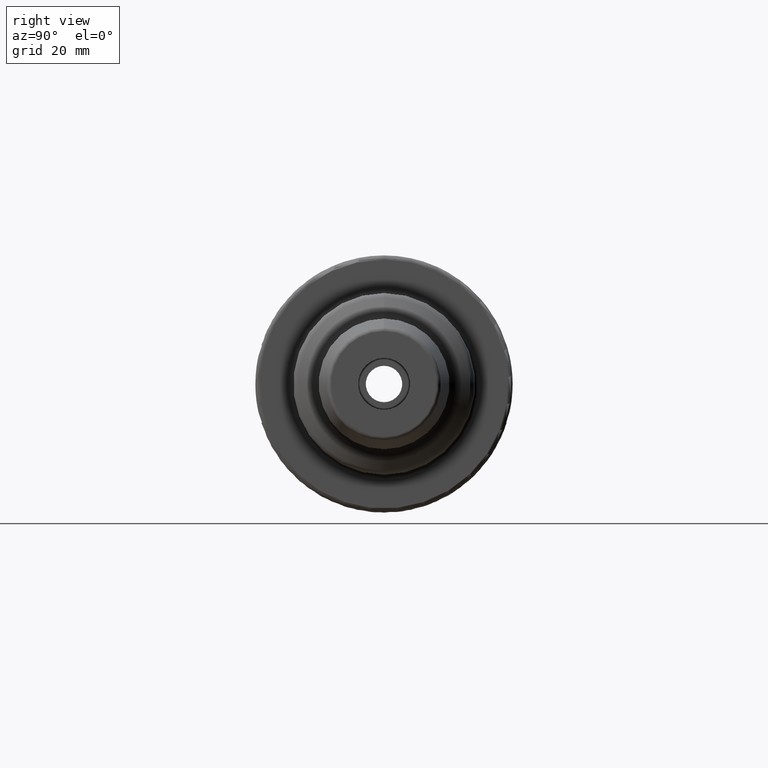
[diagram: clean part render]
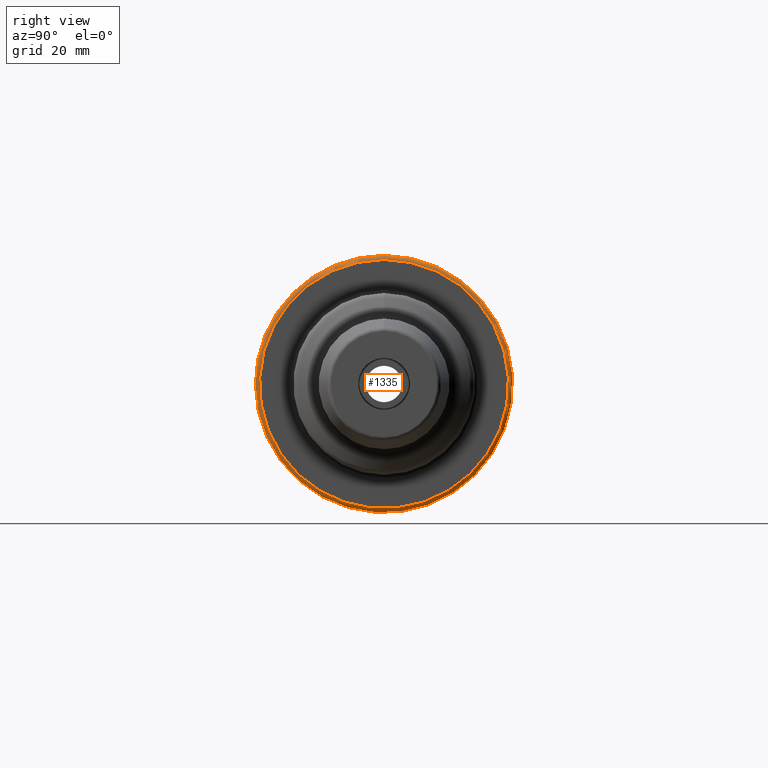
[diagram: same view with one face highlighted and labeled with its STEP entity id]
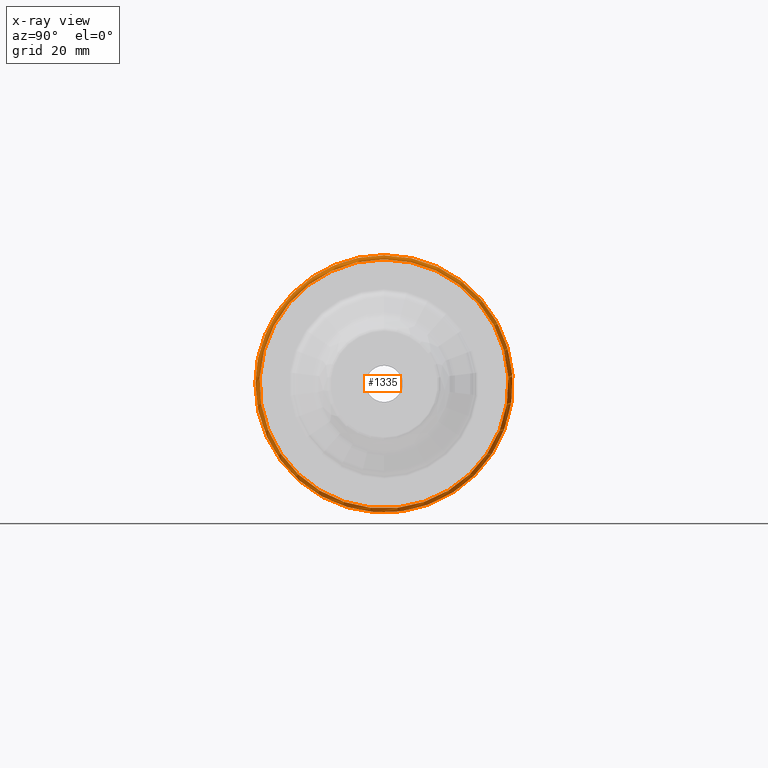
[diagram: x-ray of the same camera — body ghosted, the highlighted face saturated]
A machine part, right view. The second image highlights one B-rep face of the part: STEP entity #1335.
The next image is the same camera in x-ray: the body ghosted, the highlighted face saturated — about 0% of this face is hidden behind the body in this view.
In plain terms, the highlighted toroidal blend (fillet) surface has major radius 30.5 mm and minor (blend) radius 1 mm.
Its self-contained STEP definition (entity closure, byte-faithful):
#95=TOROIDAL_SURFACE('',#1518,30.5,1.00000000000001);
#187=FACE_OUTER_BOUND('',#274,.T.);
#274=EDGE_LOOP('',(#1190,#1191,#1192,#1193,#1194));
#470=CIRCLE('',#1439,30.5);
#478=CIRCLE('',#1455,31.5);
#481=CIRCLE('',#1458,31.5);
#507=CIRCLE('',#1519,1.00000000000001);
#555=VERTEX_POINT('',#2088);
#566=VERTEX_POINT('',#2202);
#567=VERTEX_POINT('',#2203);
#702=EDGE_CURVE('',#555,#555,#470,.T.);
#718=EDGE_CURVE('',#566,#567,#478,.T.);
#723=EDGE_CURVE('',#567,#566,#481,.T.);
#822=EDGE_CURVE('',#555,#567,#507,.T.);
#1190=ORIENTED_EDGE('',*,*,#702,.F.);
#1191=ORIENTED_EDGE('',*,*,#822,.T.);
#1192=ORIENTED_EDGE('',*,*,#723,.T.);
#1193=ORIENTED_EDGE('',*,*,#718,.T.);
#1194=ORIENTED_EDGE('',*,*,#822,.F.);
#1335=ADVANCED_FACE('',(#187),#95,.T.);
#1439=AXIS2_PLACEMENT_3D('',#2089,#1701,#1702);
#1455=AXIS2_PLACEMENT_3D('',#2204,#1736,#1737);
#1458=AXIS2_PLACEMENT_3D('',#2219,#1743,#1744);
#1518=AXIS2_PLACEMENT_3D('',#2583,#1909,#1910);
#1519=AXIS2_PLACEMENT_3D('',#2584,#1911,#1912);
#1701=DIRECTION('center_axis',(1.,0.,0.));
#1702=DIRECTION('ref_axis',(0.,0.,-1.));
#1736=DIRECTION('center_axis',(1.,0.,0.));
#1737=DIRECTION('ref_axis',(0.,0.,-1.));
#1743=DIRECTION('center_axis',(1.,0.,0.));
#1744=DIRECTION('ref_axis',(0.,0.,-1.));
#1909=DIRECTION('center_axis',(1.,0.,0.));
#1910=DIRECTION('ref_axis',(0.,0.,-1.));
#1911=DIRECTION('center_axis',(0.,-1.,-1.22464679914735E-16));
#1912=DIRECTION('ref_axis',(0.,-1.22464679914735E-16,1.));
#2088=CARTESIAN_POINT('',(27.,-3.73517273739943E-15,30.5));
#2089=CARTESIAN_POINT('Origin',(27.,0.,0.));
#2202=CARTESIAN_POINT('',(26.,-31.5,-3.85763741731417E-15));
#2203=CARTESIAN_POINT('',(26.,-3.85763741731416E-15,31.5));
#2204=CARTESIAN_POINT('Origin',(26.,0.,0.));
#2219=CARTESIAN_POINT('Origin',(26.,0.,0.));
#2583=CARTESIAN_POINT('Origin',(26.,0.,0.));
#2584=CARTESIAN_POINT('Origin',(26.,-3.73517273739943E-15,30.5));